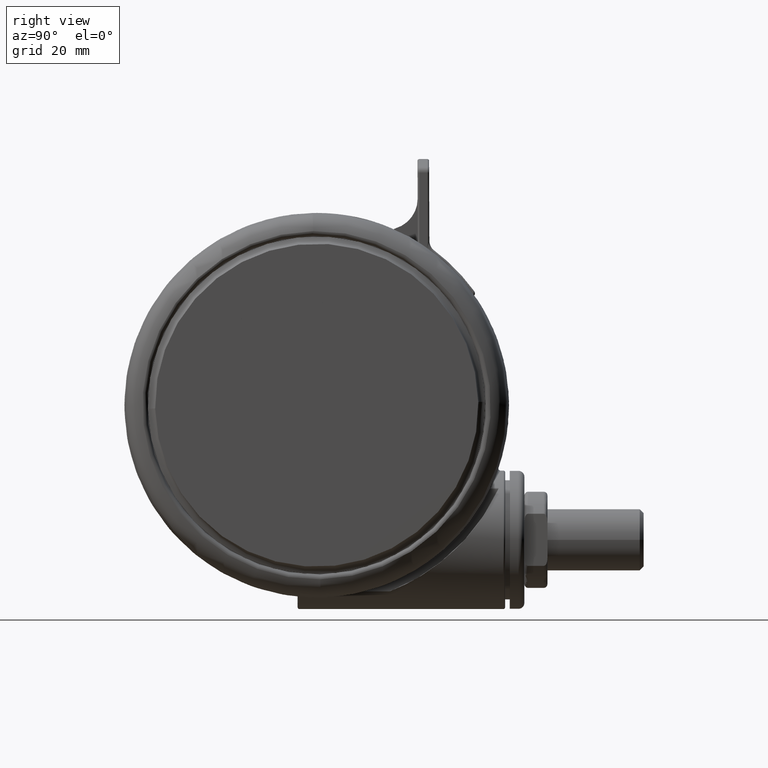
[diagram: clean part render]
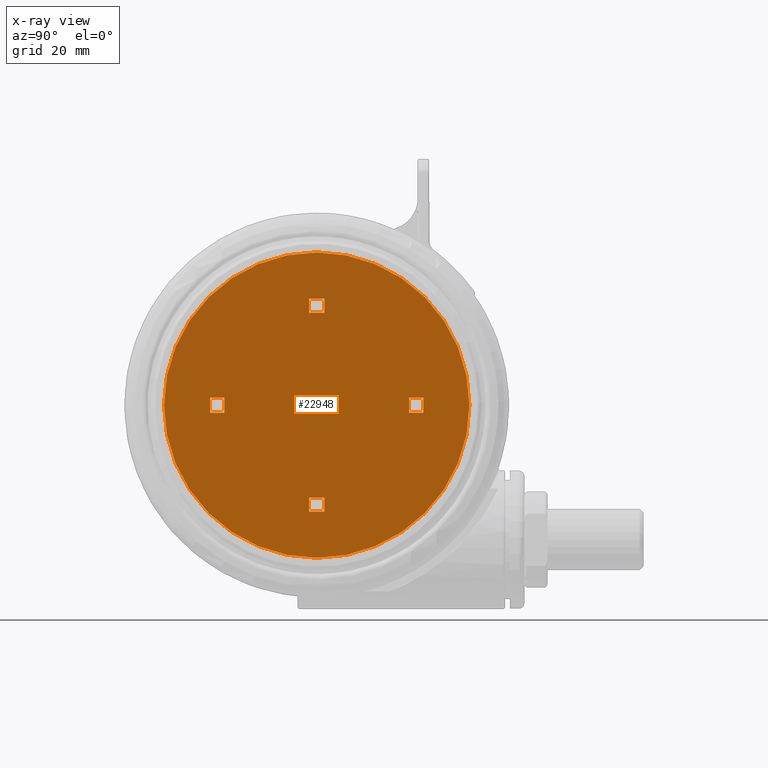
[diagram: x-ray — body ghosted, one internal face saturated and labeled with its STEP entity id]
A machine part, right view, then the same camera in x-ray: the body is ghosted and one INTERNAL B-rep face — a face not visible from any outside direction — is saturated and labeled: STEP entity #22948.
In plain terms, the highlighted planar face has unit normal (-1, 0, 0).
Its self-contained STEP definition (entity closure, byte-faithful):
#355 = EDGE_CURVE ( 'NONE', #45292, #41482, #11181, .T. ) ;
#397 = LINE ( 'NONE', #81604, #71575 ) ;
#472 = VECTOR ( 'NONE', #78296, 1000.000000000000100 ) ;
#617 = EDGE_CURVE ( 'NONE', #74750, #65415, #35848, .T. ) ;
#1693 = CARTESIAN_POINT ( 'NONE',  ( -0.04052252537399453300, -1.999584596324641500, -63.39999999999985600 ) ) ;
#1702 = EDGE_CURVE ( 'NONE', #65415, #74750, #46601, .T. ) ;
#2219 = CARTESIAN_POINT ( 'NONE',  ( 4.905537434596318700E-008, 4.841775494424105400E-006, -63.39999999999985600 ) ) ;
#2235 = VECTOR ( 'NONE', #22854, 1000.000000000000100 ) ;
#2347 = ORIENTED_EDGE ( 'NONE', *, *, #1702, .T. ) ;
#2503 = DIRECTION ( 'NONE',  ( -0.0000000000000000000, 0.0000000000000000000, -1.000000000000000000 ) ) ;
#3391 = VERTEX_POINT ( 'NONE', #6850 ) ;
#3511 = VECTOR ( 'NONE', #55529, 1000.000000000000100 ) ;
#4374 = EDGE_CURVE ( 'NONE', #6497, #25207, #44293, .T. ) ;
#4458 = DIRECTION ( 'NONE',  ( 0.02026128721469507000, 0.9997947190500675600, 1.807003620809174600E-016 ) ) ;
#5828 = EDGE_LOOP ( 'NONE', ( #2347, #11414 ) ) ;
#5966 = ORIENTED_EDGE ( 'NONE', *, *, #32392, .T. ) ;
#6497 = VERTEX_POINT ( 'NONE', #48568 ) ;
#6780 = DIRECTION ( 'NONE',  ( -0.9997947190500677800, 0.02026128721468460300, 1.807003620809174600E-016 ) ) ;
#6850 = CARTESIAN_POINT ( 'NONE',  ( 23.95455073182763400, -2.485855489477072100, -63.39999999999985600 ) ) ;
#8166 = CARTESIAN_POINT ( 'NONE',  ( -39.93044841662561600, 28.51490069165710400, -63.39999999999985600 ) ) ;
#8365 = CARTESIAN_POINT ( 'NONE',  ( -0.8043730533676043400, -39.69184550451220200, -63.39999999999984200 ) ) ;
#8479 = FACE_BOUND ( 'NONE', #29977, .T. ) ;
#8533 = LINE ( 'NONE', #1693, #73740 ) ;
#8556 = DIRECTION ( 'NONE',  ( -0.02026128721468459900, -0.9997947190500677800, 0.0000000000000000000 ) ) ;
#8569 = PLANE ( 'NONE',  #73098 ) ;
#9235 = CARTESIAN_POINT ( 'NONE',  ( -23.95455063371688500, 2.485865173028060800, -63.39999999999985600 ) ) ;
#10640 = VECTOR ( 'NONE', #6780, 1000.000000000000100 ) ;
#10765 = CARTESIAN_POINT ( 'NONE',  ( 1.999589487155510000, -0.04051773265389605600, -63.39999999999985600 ) ) ;
#11006 = LINE ( 'NONE', #80121, #21859 ) ;
#11029 = EDGE_CURVE ( 'NONE', #35152, #32945, #67514, .T. ) ;
#11181 = LINE ( 'NONE', #16596, #74416 ) ;
#11414 = ORIENTED_EDGE ( 'NONE', *, *, #617, .T. ) ;
#12333 = EDGE_CURVE ( 'NONE', #63864, #19406, #35121, .T. ) ;
#12447 = ORIENTED_EDGE ( 'NONE', *, *, #12333, .T. ) ;
#13161 = CARTESIAN_POINT ( 'NONE',  ( 2.485860380308025700, 23.95455552454775400, -63.39999999999985600 ) ) ;
#13218 = AXIS2_PLACEMENT_3D ( 'NONE', #51297, #13381, #57630 ) ;
#13364 = ORIENTED_EDGE ( 'NONE', *, *, #48362, .T. ) ;
#13381 = DIRECTION ( 'NONE',  ( 0.0000000000000000000, -0.0000000000000000000, 1.000000000000000000 ) ) ;
#15738 = AXIS2_PLACEMENT_3D ( 'NONE', #2219, #46448, #8556 ) ;
#16596 = CARTESIAN_POINT ( 'NONE',  ( -41.05292372831912900, -26.87372674371625800, -63.39999999999985600 ) ) ;
#16610 = CARTESIAN_POINT ( 'NONE',  ( -27.73483624306087600, -1.438346940477877900, -63.39999999999985600 ) ) ;
#17209 = CARTESIAN_POINT ( 'NONE',  ( -2.560827044891814900, -27.65378630148200800, -63.39999999999985600 ) ) ;
#17256 = LINE ( 'NONE', #34155, #472 ) ;
#18207 = ORIENTED_EDGE ( 'NONE', *, *, #11029, .T. ) ;
#18978 = VERTEX_POINT ( 'NONE', #16610 ) ;
#19406 = VERTEX_POINT ( 'NONE', #65165 ) ;
#19788 = DIRECTION ( 'NONE',  ( 0.9997947190500677800, -0.02026128721468460300, 1.807003620809174600E-016 ) ) ;
#21859 = VECTOR ( 'NONE', #54753, 1000.000000000000100 ) ;
#22199 = CARTESIAN_POINT ( 'NONE',  ( -1.513318495892246100, 24.03560067340649200, -63.39999999999985600 ) ) ;
#22854 = DIRECTION ( 'NONE',  ( -0.02026128721468460300, -0.9997947190500677800, -0.0000000000000000000 ) ) ;
#22948 = ADVANCED_FACE ( 'NONE', ( #8479, #42105, #75644, #73684, #56912 ), #8569, .F. ) ;
#23573 = EDGE_CURVE ( 'NONE', #41482, #63864, #17256, .T. ) ;
#25064 = EDGE_CURVE ( 'NONE', #18978, #32257, #41428, .T. ) ;
#25207 = VERTEX_POINT ( 'NONE', #34167 ) ;
#26138 = LINE ( 'NONE', #77176, #57765 ) ;
#26178 = ORIENTED_EDGE ( 'NONE', *, *, #355, .T. ) ;
#26372 = LINE ( 'NONE', #55862, #56015 ) ;
#26581 = CARTESIAN_POINT ( 'NONE',  ( 27.65379119231288400, -2.560822252171405000, -63.39999999999985600 ) ) ;
#26753 = DIRECTION ( 'NONE',  ( 0.9997947190500677800, -0.02026128721468460300, 1.807003620809174600E-016 ) ) ;
#27876 = VECTOR ( 'NONE', #80762, 1000.000000000000100 ) ;
#29977 = EDGE_LOOP ( 'NONE', ( #26178, #78274, #12447, #49294 ) ) ;
#32257 = VERTEX_POINT ( 'NONE', #45040 ) ;
#32392 = EDGE_CURVE ( 'NONE', #72762, #36716, #45876, .T. ) ;
#32945 = VERTEX_POINT ( 'NONE', #9235 ) ;
#34011 = EDGE_LOOP ( 'NONE', ( #44164, #18207, #34734, #71700 ) ) ;
#34065 = CARTESIAN_POINT ( 'NONE',  ( -27.65379109420213800, 2.560831935722394100, -63.39999999999985600 ) ) ;
#34155 = CARTESIAN_POINT ( 'NONE',  ( -1.999589389044761100, 0.04052741620488425200, -63.39999999999985600 ) ) ;
#34167 = CARTESIAN_POINT ( 'NONE',  ( 24.03559588068637600, 1.513323386723199900, -63.39999999999985600 ) ) ;
#34432 = EDGE_LOOP ( 'NONE', ( #63867, #68278, #70309, #50990 ) ) ;
#34734 = ORIENTED_EDGE ( 'NONE', *, *, #67961, .T. ) ;
#35121 = LINE ( 'NONE', #62127, #3511 ) ;
#35152 = VERTEX_POINT ( 'NONE', #34065 ) ;
#35848 = CIRCLE ( 'NONE', #15738, 39.70000000000000300 ) ;
#36716 = VERTEX_POINT ( 'NONE', #22199 ) ;
#40290 = VERTEX_POINT ( 'NONE', #80162 ) ;
#41428 = LINE ( 'NONE', #64272, #43403 ) ;
#41482 = VERTEX_POINT ( 'NONE', #17209 ) ;
#42105 = FACE_BOUND ( 'NONE', #34432, .T. ) ;
#43001 = CARTESIAN_POINT ( 'NONE',  ( 27.69431376674225500, -0.5612328140712691300, -63.39999999999985600 ) ) ;
#43189 = DIRECTION ( 'NONE',  ( 0.02026128721468460300, 0.9997947190500677800, 0.0000000000000000000 ) ) ;
#43403 = VECTOR ( 'NONE', #19788, 1000.000000000000100 ) ;
#44164 = ORIENTED_EDGE ( 'NONE', *, *, #72102, .T. ) ;
#44293 = LINE ( 'NONE', #50981, #10640 ) ;
#45040 = CARTESIAN_POINT ( 'NONE',  ( -24.03559578257562600, -1.513313703172211000, -63.39999999999985600 ) ) ;
#45292 = VERTEX_POINT ( 'NONE', #75452 ) ;
#45686 = EDGE_CURVE ( 'NONE', #45292, #19406, #69936, .T. ) ;
#45876 = LINE ( 'NONE', #59601, #73468 ) ;
#46448 = DIRECTION ( 'NONE',  ( 0.0000000000000000000, -0.0000000000000000000, 1.000000000000000000 ) ) ;
#46601 = CIRCLE ( 'NONE', #13218, 39.70000000000000300 ) ;
#46735 = DIRECTION ( 'NONE',  ( -0.02026128721468460300, -0.9997947190500677800, 0.0000000000000000000 ) ) ;
#46962 = VECTOR ( 'NONE', #64743, 1000.000000000000100 ) ;
#48349 = CARTESIAN_POINT ( 'NONE',  ( -24.03559578257562600, -1.513313703172211000, -63.39999999999985600 ) ) ;
#48362 = EDGE_CURVE ( 'NONE', #59935, #72762, #26138, .T. ) ;
#48568 = CARTESIAN_POINT ( 'NONE',  ( 27.73483634117162600, 1.438356624028866800, -63.39999999999985600 ) ) ;
#49294 = ORIENTED_EDGE ( 'NONE', *, *, #45686, .F. ) ;
#49797 = EDGE_CURVE ( 'NONE', #6497, #73578, #57540, .T. ) ;
#50667 = LINE ( 'NONE', #48349, #2235 ) ;
#50981 = CARTESIAN_POINT ( 'NONE',  ( 0.04052262348474387800, 1.999594279875630300, -63.39999999999985600 ) ) ;
#50990 = ORIENTED_EDGE ( 'NONE', *, *, #4374, .F. ) ;
#51189 = VECTOR ( 'NONE', #4458, 1000.000000000000100 ) ;
#51297 = CARTESIAN_POINT ( 'NONE',  ( 4.905537434596318700E-008, 4.841775494424105400E-006, -63.39999999999985600 ) ) ;
#52149 = EDGE_LOOP ( 'NONE', ( #60120, #13364, #5966, #57300 ) ) ;
#52754 = VECTOR ( 'NONE', #26753, 1000.000000000000100 ) ;
#53274 = DIRECTION ( 'NONE',  ( -0.9997947190500676700, 0.02026128721468809000, -0.0000000000000000000 ) ) ;
#53640 = EDGE_CURVE ( 'NONE', #3391, #25207, #397, .T. ) ;
#54480 = DIRECTION ( 'NONE',  ( -0.9997947190500675600, 0.02026128721469507000, 0.0000000000000000000 ) ) ;
#54753 = DIRECTION ( 'NONE',  ( -0.02026128721468809000, -0.9997947190500676700, 1.807003620809174600E-016 ) ) ;
#55529 = DIRECTION ( 'NONE',  ( 0.9997947190500675600, -0.02026128721469507000, -0.0000000000000000000 ) ) ;
#55862 = CARTESIAN_POINT ( 'NONE',  ( -27.69431366863150500, 0.5612424976222579700, -63.39999999999985600 ) ) ;
#56015 = VECTOR ( 'NONE', #43189, 1000.000000000000100 ) ;
#56912 = FACE_OUTER_BOUND ( 'NONE', #5828, .T. ) ;
#57300 = ORIENTED_EDGE ( 'NONE', *, *, #58094, .F. ) ;
#57540 = LINE ( 'NONE', #43001, #27876 ) ;
#57630 = DIRECTION ( 'NONE',  ( -0.02026128721468459900, -0.9997947190500677800, 0.0000000000000000000 ) ) ;
#57765 = VECTOR ( 'NONE', #70841, 1000.000000000000100 ) ;
#58094 = EDGE_CURVE ( 'NONE', #40290, #36716, #11006, .T. ) ;
#58584 = DIRECTION ( 'NONE',  ( -0.9997947190500677800, 0.02026128721468460300, 1.807003620809174600E-016 ) ) ;
#59601 = CARTESIAN_POINT ( 'NONE',  ( -1.513318495892246100, 24.03560067340649200, -63.39999999999985600 ) ) ;
#59935 = VERTEX_POINT ( 'NONE', #60216 ) ;
#60120 = ORIENTED_EDGE ( 'NONE', *, *, #66620, .T. ) ;
#60216 = CARTESIAN_POINT ( 'NONE',  ( 2.560827143002368800, 27.65379598503300300, -63.39999999999985600 ) ) ;
#62127 = CARTESIAN_POINT ( 'NONE',  ( 1.513318594002830000, -24.03559098985550000, -63.39999999999985600 ) ) ;
#63864 = VERTEX_POINT ( 'NONE', #77920 ) ;
#63867 = ORIENTED_EDGE ( 'NONE', *, *, #49797, .T. ) ;
#64272 = CARTESIAN_POINT ( 'NONE',  ( -0.04052252537399518600, -1.999584596324641500, -63.39999999999985600 ) ) ;
#64743 = DIRECTION ( 'NONE',  ( 0.9997947190500676700, -0.02026128721468809000, 0.0000000000000000000 ) ) ;
#65165 = CARTESIAN_POINT ( 'NONE',  ( 1.513318594002830000, -24.03559098985550000, -63.39999999999985600 ) ) ;
#65415 = VERTEX_POINT ( 'NONE', #8365 ) ;
#65420 = CARTESIAN_POINT ( 'NONE',  ( -40.49168607247237600, 0.8205869739702208500, -63.39999999999985600 ) ) ;
#66620 = EDGE_CURVE ( 'NONE', #40290, #59935, #78476, .T. ) ;
#67514 = LINE ( 'NONE', #70929, #52754 ) ;
#67961 = EDGE_CURVE ( 'NONE', #32945, #32257, #50667, .T. ) ;
#68278 = ORIENTED_EDGE ( 'NONE', *, *, #72346, .T. ) ;
#68669 = DIRECTION ( 'NONE',  ( 0.02026128721468460300, 0.9997947190500677800, -0.0000000000000000000 ) ) ;
#69936 = LINE ( 'NONE', #10765, #51189 ) ;
#70309 = ORIENTED_EDGE ( 'NONE', *, *, #53640, .T. ) ;
#70841 = DIRECTION ( 'NONE',  ( -0.02026128721468809000, -0.9997947190500676700, 1.807003620809174600E-016 ) ) ;
#70929 = CARTESIAN_POINT ( 'NONE',  ( 0.04052262348474322500, 1.999594279875630300, -63.39999999999985600 ) ) ;
#71575 = VECTOR ( 'NONE', #68669, 1000.000000000000100 ) ;
#71700 = ORIENTED_EDGE ( 'NONE', *, *, #25064, .F. ) ;
#72102 = EDGE_CURVE ( 'NONE', #18978, #35152, #26372, .T. ) ;
#72346 = EDGE_CURVE ( 'NONE', #73578, #3391, #8533, .T. ) ;
#72762 = VERTEX_POINT ( 'NONE', #13161 ) ;
#73098 = AXIS2_PLACEMENT_3D ( 'NONE', #65420, #2503, #46735 ) ;
#73468 = VECTOR ( 'NONE', #53274, 1000.000000000000100 ) ;
#73578 = VERTEX_POINT ( 'NONE', #26581 ) ;
#73684 = FACE_BOUND ( 'NONE', #34011, .T. ) ;
#73740 = VECTOR ( 'NONE', #58584, 1000.000000000000100 ) ;
#74416 = VECTOR ( 'NONE', #54480, 1000.000000000000100 ) ;
#74750 = VERTEX_POINT ( 'NONE', #77163 ) ;
#75452 = CARTESIAN_POINT ( 'NONE',  ( 1.438351831308456700, -27.73483145034074900, -63.39999999999985600 ) ) ;
#75644 = FACE_BOUND ( 'NONE', #52149, .T. ) ;
#77163 = CARTESIAN_POINT ( 'NONE',  ( 0.8043731514783482000, 39.69185518806318700, -63.39999999999984200 ) ) ;
#77176 = CARTESIAN_POINT ( 'NONE',  ( 1.999589487155510400, -0.04051773265388143600, -63.39999999999985600 ) ) ;
#77920 = CARTESIAN_POINT ( 'NONE',  ( -2.485860282197441600, -23.95454584099676200, -63.39999999999985600 ) ) ;
#78274 = ORIENTED_EDGE ( 'NONE', *, *, #23573, .T. ) ;
#78296 = DIRECTION ( 'NONE',  ( 0.02026128721469507000, 0.9997947190500675600, 1.807003620809174600E-016 ) ) ;
#78476 = LINE ( 'NONE', #8166, #46962 ) ;
#80121 = CARTESIAN_POINT ( 'NONE',  ( -1.999589389044761600, 0.04052741620487093600, -63.39999999999985600 ) ) ;
#80162 = CARTESIAN_POINT ( 'NONE',  ( -1.438351733197903000, 27.73484113389174200, -63.39999999999985600 ) ) ;
#80762 = DIRECTION ( 'NONE',  ( -0.02026128721468460300, -0.9997947190500677800, 0.0000000000000000000 ) ) ;
#81604 = CARTESIAN_POINT ( 'NONE',  ( 24.03559588068637600, 1.513323386723199900, -63.39999999999985600 ) ) ;